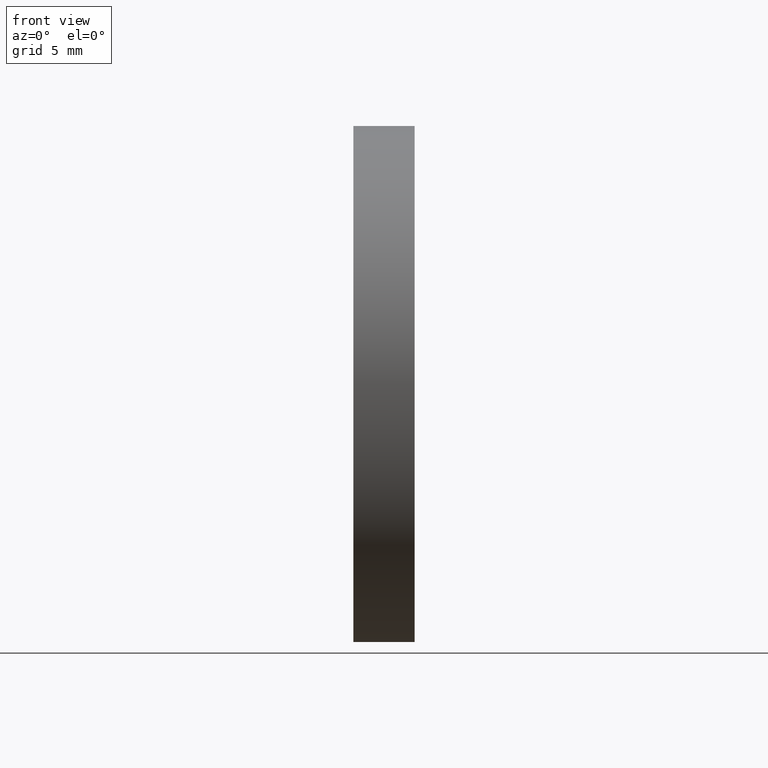
[diagram: clean part render]
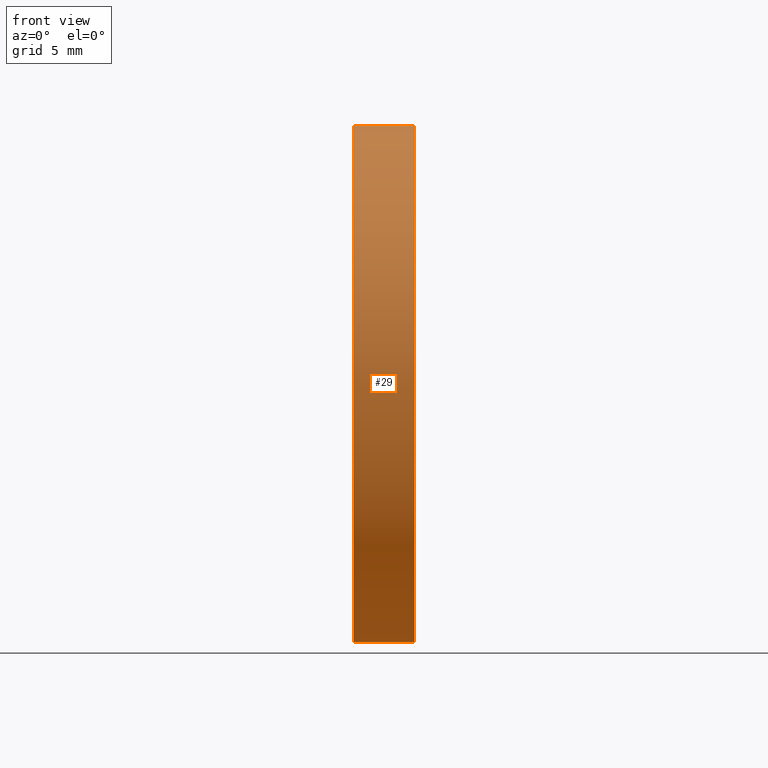
[diagram: same view with one face highlighted and labeled with its STEP entity id]
A machine part, front view. The second image highlights one B-rep face of the part: STEP entity #29.
In plain terms, the highlighted cylindrical surface (partial cylindrical patch) has radius 12.7 mm, axis along (-1, -0, -0).
Its self-contained STEP definition (entity closure, byte-faithful):
#9 = DIRECTION ( 'NONE',  ( 0.0000000000000000000, 0.0000000000000000000, 1.000000000000000000 ) ) ;
#18 = AXIS2_PLACEMENT_3D ( 'NONE', #99, #61, #24 ) ;
#20 = DIRECTION ( 'NONE',  ( -1.000000000000000000, -0.0000000000000000000, -0.0000000000000000000 ) ) ;
#21 = DIRECTION ( 'NONE',  ( -1.000000000000000000, -0.0000000000000000000, -0.0000000000000000000 ) ) ;
#23 = EDGE_CURVE ( 'NONE', #90, #123, #156, .T. ) ;
#24 = DIRECTION ( 'NONE',  ( 0.0000000000000000000, 0.0000000000000000000, 1.000000000000000000 ) ) ;
#27 = EDGE_CURVE ( 'NONE', #90, #155, #120, .T. ) ;
#28 = ORIENTED_EDGE ( 'NONE', *, *, #45, .T. ) ;
#29 = ADVANCED_FACE ( 'NONE', ( #92 ), #89, .T. ) ;
#30 = VECTOR ( 'NONE', #21, 1000.000000000000000 ) ;
#35 = CARTESIAN_POINT ( 'NONE',  ( 122.3779162781598300, 71.19398908659370300, -12.69999999999996600 ) ) ;
#38 = CARTESIAN_POINT ( 'NONE',  ( 122.3779162781598300, 71.19398908659370300, 0.0000000000000000000 ) ) ;
#45 = EDGE_CURVE ( 'NONE', #155, #46, #130, .T. ) ;
#46 = VERTEX_POINT ( 'NONE', #110 ) ;
#48 = CARTESIAN_POINT ( 'NONE',  ( 111.9552297575605700, 71.19398908659370300, 0.0000000000000000000 ) ) ;
#58 = ORIENTED_EDGE ( 'NONE', *, *, #27, .T. ) ;
#60 = DIRECTION ( 'NONE',  ( 0.0000000000000000000, 0.0000000000000000000, 1.000000000000000000 ) ) ;
#61 = DIRECTION ( 'NONE',  ( -1.000000000000000000, -0.0000000000000000000, -0.0000000000000000000 ) ) ;
#68 = ORIENTED_EDGE ( 'NONE', *, *, #91, .F. ) ;
#70 = CIRCLE ( 'NONE', #18, 12.70000000000000300 ) ;
#72 = AXIS2_PLACEMENT_3D ( 'NONE', #38, #20, #60 ) ;
#75 = CARTESIAN_POINT ( 'NONE',  ( 122.3779162781598300, 71.19398908659370300, 12.69999999999996600 ) ) ;
#81 = DIRECTION ( 'NONE',  ( -1.000000000000000000, -0.0000000000000000000, -0.0000000000000000000 ) ) ;
#89 = CYLINDRICAL_SURFACE ( 'NONE', #112, 12.69999999999998900 ) ;
#90 = VERTEX_POINT ( 'NONE', #35 ) ;
#91 = EDGE_CURVE ( 'NONE', #123, #46, #70, .T. ) ;
#92 = FACE_OUTER_BOUND ( 'NONE', #131, .T. ) ;
#93 = CARTESIAN_POINT ( 'NONE',  ( 111.9552297575605700, 71.19398908659370300, 12.69999999999998900 ) ) ;
#98 = CARTESIAN_POINT ( 'NONE',  ( 119.3629307920347200, 71.19398908659370300, -12.70000000000000300 ) ) ;
#99 = CARTESIAN_POINT ( 'NONE',  ( 119.3629307920347200, 71.19398908659370300, 0.0000000000000000000 ) ) ;
#101 = VECTOR ( 'NONE', #81, 1000.000000000000000 ) ;
#110 = CARTESIAN_POINT ( 'NONE',  ( 119.3629307920347200, 71.19398908659370300, 12.70000000000000300 ) ) ;
#112 = AXIS2_PLACEMENT_3D ( 'NONE', #48, #148, #9 ) ;
#120 = CIRCLE ( 'NONE', #72, 12.69999999999997400 ) ;
#123 = VERTEX_POINT ( 'NONE', #98 ) ;
#130 = LINE ( 'NONE', #93, #101 ) ;
#131 = EDGE_LOOP ( 'NONE', ( #162, #58, #28, #68 ) ) ;
#148 = DIRECTION ( 'NONE',  ( -1.000000000000000000, -0.0000000000000000000, -0.0000000000000000000 ) ) ;
#155 = VERTEX_POINT ( 'NONE', #75 ) ;
#156 = LINE ( 'NONE', #163, #30 ) ;
#162 = ORIENTED_EDGE ( 'NONE', *, *, #23, .F. ) ;
#163 = CARTESIAN_POINT ( 'NONE',  ( 111.9552297575605700, 71.19398908659370300, -12.69999999999998900 ) ) ;